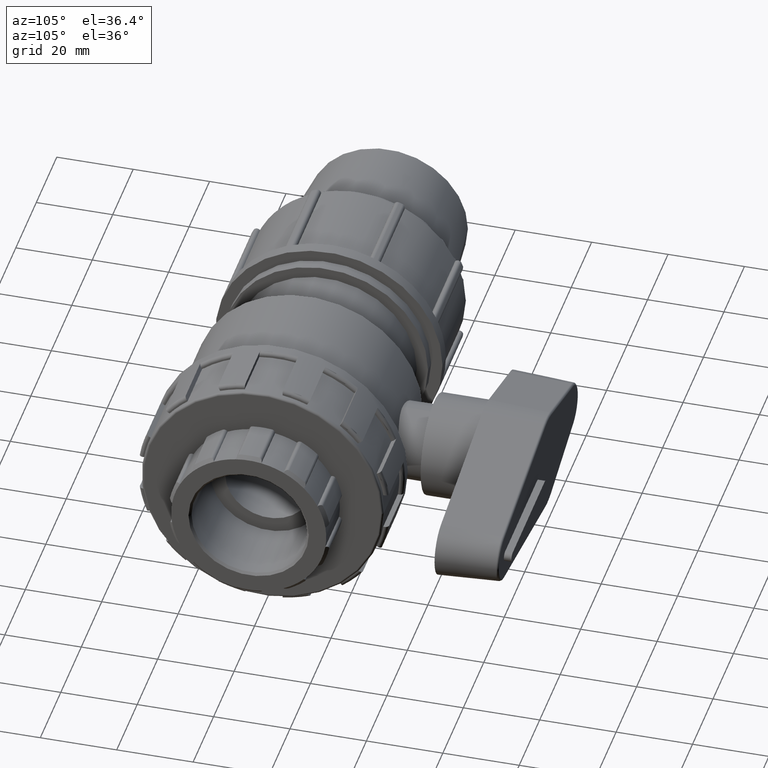
[diagram: clean part render]
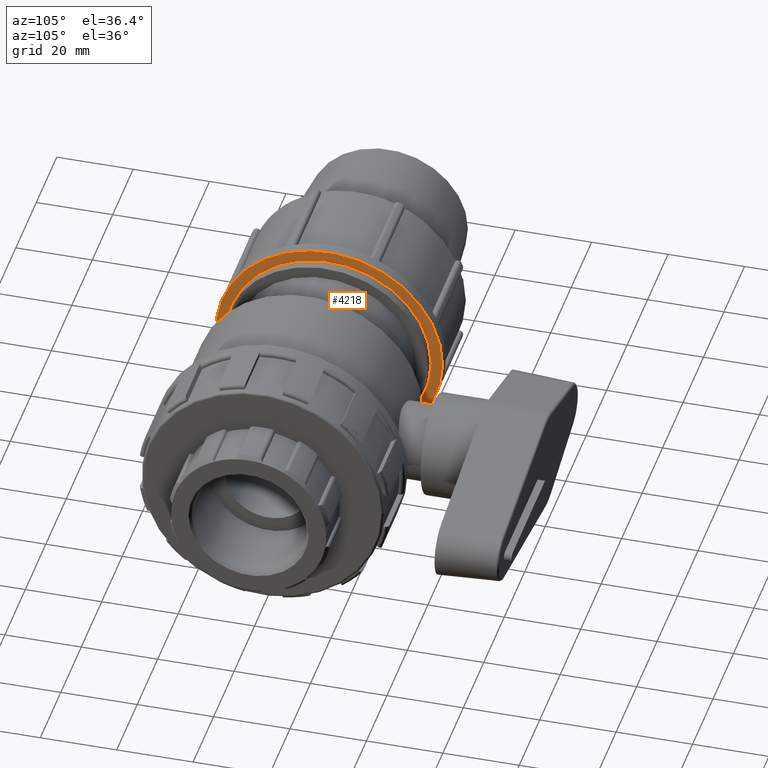
[diagram: same view with one face highlighted and labeled with its STEP entity id]
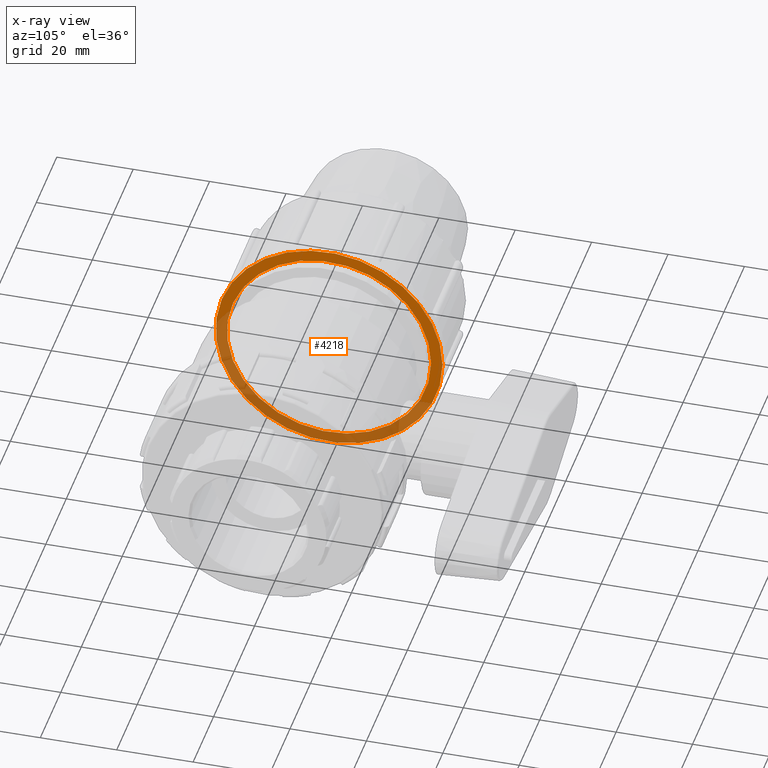
[diagram: x-ray of the same camera — body ghosted, the highlighted face saturated]
A machine part, auxiliary view. The second image highlights one B-rep face of the part: STEP entity #4218.
The next image is the same camera in x-ray: the body ghosted, the highlighted face saturated — about 45% of this face is hidden behind the body in this view.
In plain terms, the highlighted planar face has unit normal (1, 0, 0).
Its self-contained STEP definition (entity closure, byte-faithful):
#62=FACE_BOUND('',#875,.T.);
#205=PLANE('',#4714);
#598=FACE_OUTER_BOUND('',#874,.T.);
#874=EDGE_LOOP('',(#3890));
#875=EDGE_LOOP('',(#3891));
#1421=CIRCLE('',#4368,29.7);
#1603=CIRCLE('',#4713,26.73);
#1743=VERTEX_POINT('',#7074);
#2016=VERTEX_POINT('',#8610);
#2228=EDGE_CURVE('',#1743,#1743,#1421,.T.);
#2643=EDGE_CURVE('',#2016,#2016,#1603,.T.);
#3890=ORIENTED_EDGE('',*,*,#2228,.F.);
#3891=ORIENTED_EDGE('',*,*,#2643,.T.);
#4218=ADVANCED_FACE('',(#598,#62),#205,.T.);
#4368=AXIS2_PLACEMENT_3D('',#7075,#5074,#5075);
#4713=AXIS2_PLACEMENT_3D('',#8611,#5928,#5929);
#4714=AXIS2_PLACEMENT_3D('',#8612,#5930,#5931);
#5074=DIRECTION('center_axis',(-1.,0.,0.));
#5075=DIRECTION('ref_axis',(0.,0.,1.));
#5928=DIRECTION('center_axis',(-1.,0.,0.));
#5929=DIRECTION('ref_axis',(0.,0.,1.));
#5930=DIRECTION('center_axis',(1.,0.,0.));
#5931=DIRECTION('ref_axis',(0.,0.,-1.));
#7074=CARTESIAN_POINT('',(-32.8333333333333,29.7,0.));
#7075=CARTESIAN_POINT('Origin',(-32.8333333333333,0.,0.));
#8610=CARTESIAN_POINT('',(-32.8333333333333,26.73,0.));
#8611=CARTESIAN_POINT('Origin',(-32.8333333333333,0.,0.));
#8612=CARTESIAN_POINT('Origin',(-32.8333333333333,29.7,0.));